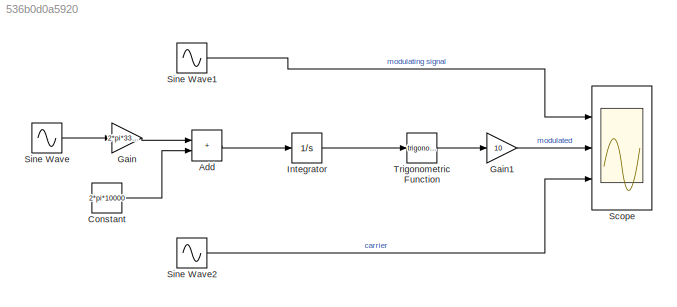
MODEL slx_536b0d0a5920
KIND model
CONFIG AbsTol = auto
CONFIG EnableMultiTasking = off
CONFIG FixedStep = auto
CONFIG MaxStep = auto
CONFIG MinStep = auto
CONFIG RelTol = 1e-3
CONFIG SampleTimeConstraint = Unconstrained
CONFIG SolverName = VariableStepAuto
CONFIG StartTime = 0.0
CONFIG StopTime = 0.01
BLOCK [Sum] Add
  IconShape = rectangular
  Ports = [2, 1]
BLOCK [Constant] Constant
  Value = 2*pi*10000
BLOCK [Gain] Gain
  Gain = 2*pi*3333
BLOCK [Gain] Gain1
  Gain = 10
BLOCK [Integrator] Integrator
  Ports = [1, 1]
BLOCK [Scope] Scope
  Floating = off
  NumInputPorts = 3
  Ports = [3]
  ScopeSpecificationString = Simulink.scopes.TimeScopeBlockCfg('CurrentConfiguration', extmgr.ConfigurationSet(extmgr.Configuration('Core','General UI',true),extmgr.Configuration('Core','Source UI',true),extmgr.Configuration('Sources','WiredSimulink',true),extmgr.Configuration('Visuals','Time Domain',true,'SerializedDisplays',{struct('MinYLimReal','-12.41865','MaxYLimReal','12.40682','YLabelReal','','MinYLimMag','0.00000','Ma...<+1490ch>
BLOCK [Sin] Sine Wave
  Amplitude = 3
  Frequency = 2*pi*1000
  Phase = pi/2
  Ports = [0, 1]
  SampleTime = 0
BLOCK [Sin] Sine Wave1
  Amplitude = 3
  Frequency = 2*pi*1000
  Phase = pi/2
  Ports = [0, 1]
  SampleTime = 0
BLOCK [Sin] Sine Wave2
  Amplitude = 10
  Frequency = 2*pi*10000
  Ports = [0, 1]
  SampleTime = 0
BLOCK [Trigonometry] Trigonometric Function
  Ports = [1, 1]
LINE Add:1 -> Integrator:1
LINE Constant:1 -> Add:2
LINE Gain1:1 -> Scope:2
LINE Gain:1 -> Add:1
LINE Integrator:1 -> Trigonometric Function:1
LINE Sine Wave1:1 -> Scope:1
LINE Sine Wave2:1 -> Scope:3
LINE Sine Wave:1 -> Gain:1
LINE Trigonometric Function:1 -> Gain1:1
